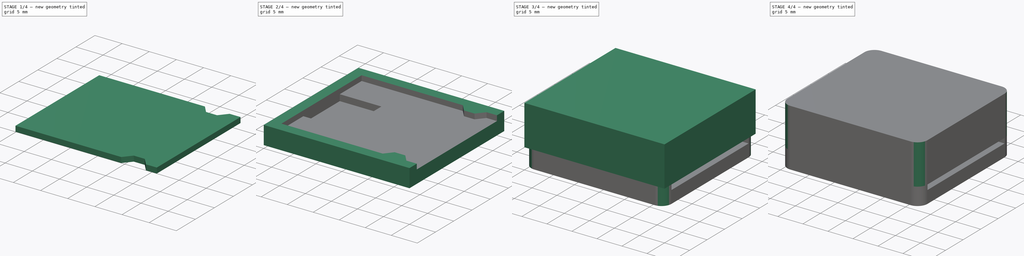
[diagram: build sequence overview — one tinted view per stage of 4, left to right]
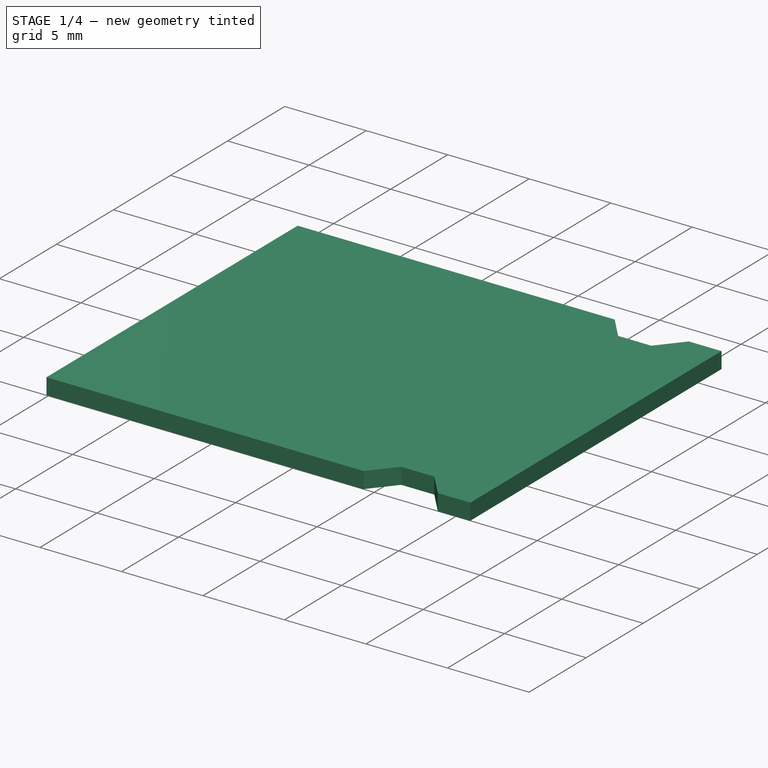
[diagram: stage 1 of 4 — iso view after this stage's code; geometry added in this stage tinted green]
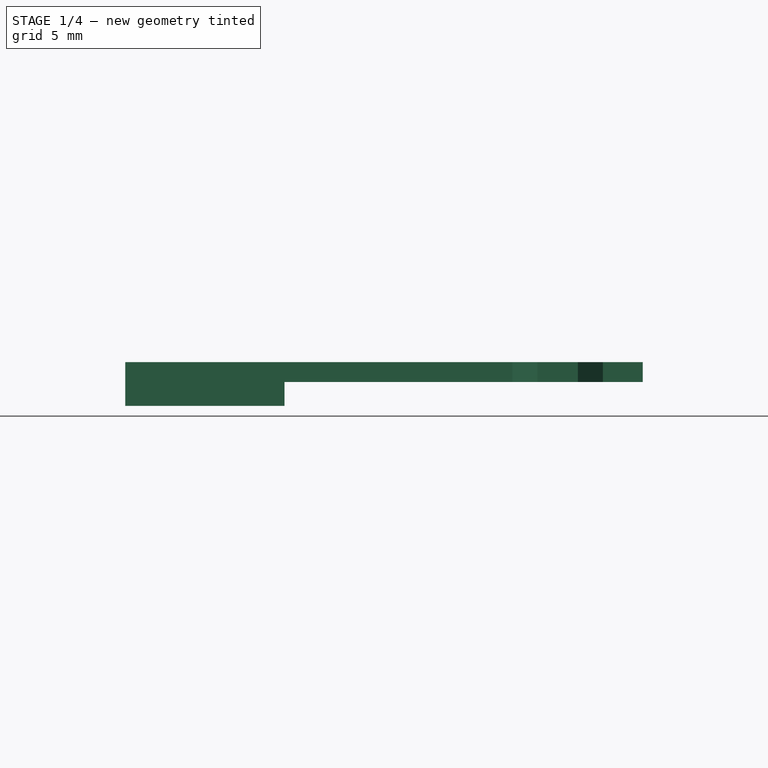
[diagram: stage 1 of 4 — front view after this stage's code; geometry added in this stage tinted green]
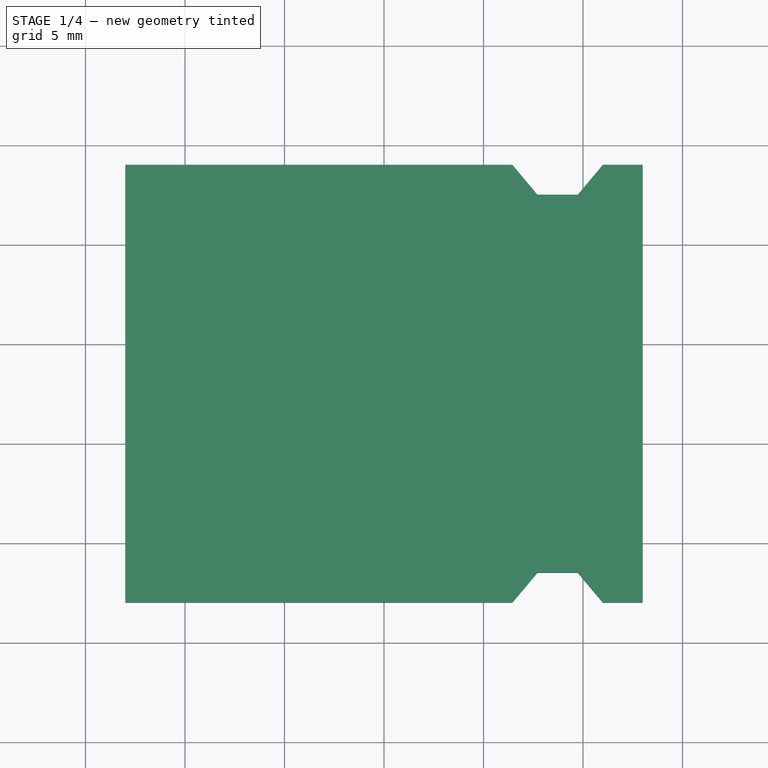
[diagram: stage 1 of 4 — top view after this stage's code; geometry added in this stage tinted green]
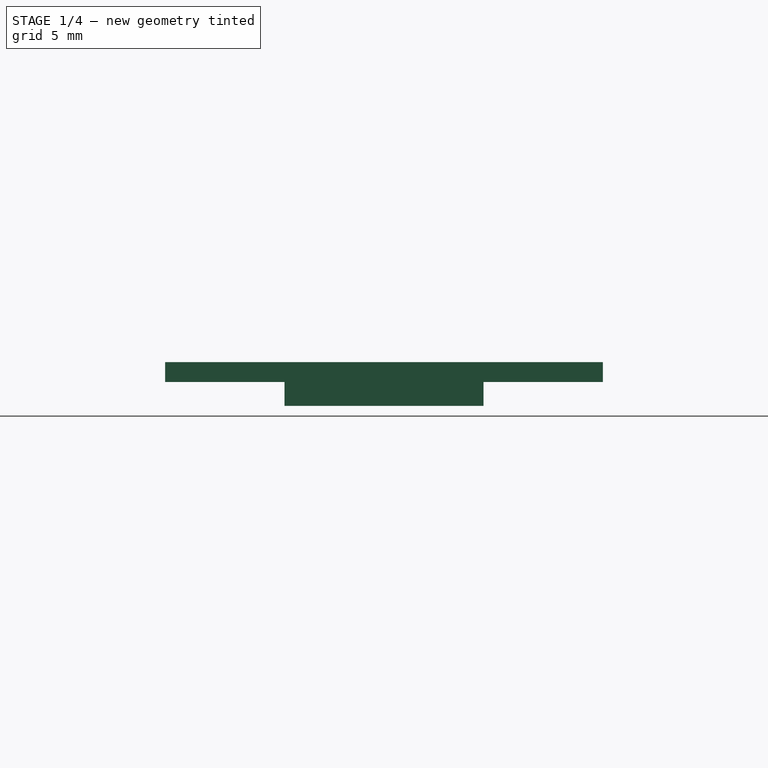
[diagram: stage 1 of 4 — right view after this stage's code; geometry added in this stage tinted green]
FCSTD DOCUMENT  (FreeCAD 0.16RUnknown)
Label: moist
License: All rights reserved
LicenseURL: http://en.wikipedia.org/wiki/All_rights_reserved
objects: Part::Box×5, Part::Cut×3, Sketcher::SketchObject×2, PartDesign::Pocket×2, PartDesign::Fillet×2
note: 16 computed .brp shape members not serialized (recipe doc carries the construction recipe); baked Part::Feature solids carry a one-line shape summary decoded from their .brp

FEATURE [Part::Box] Box001  label="Würfel001"
  Height = 1
  Length = 26
  Placement = pos=(2,2,2.5) rot=(0,0,1;0rad)
  Width = 22
FEATURE [Sketcher::SketchObject] Sketch
  ExternalGeometry = -> [Box001]
  Placement = pos=(2,2,3.5) rot=(0,0,1;0rad)
  Support = -> Box001 [Face6]
  sketch-geometry (14):
    g0: LineSegment StartX=24 StartY=22 StartZ=0 EndX=22.7414 EndY=20.5 EndZ=0
    g1: LineSegment StartX=22.7414 StartY=20.5 StartZ=0 EndX=20.7086 EndY=20.5 EndZ=0
    g2: LineSegment StartX=20.7086 StartY=20.5 StartZ=0 EndX=19.45 EndY=22 EndZ=0
    g3: LineSegment StartX=19.45 StartY=22 StartZ=0 EndX=24 EndY=22 EndZ=0
    g4: LineSegment StartX=19.45 StartY=0 StartZ=0 EndX=20.7086 EndY=1.5 EndZ=0
    g5: LineSegment StartX=20.7086 StartY=1.5 StartZ=0 EndX=22.7414 EndY=1.5 EndZ=0
    g6: LineSegment StartX=22.7414 StartY=1.5 StartZ=0 EndX=24 EndY=0 EndZ=0
    g7: LineSegment StartX=24 StartY=0 StartZ=0 EndX=19.45 EndY=0 EndZ=0
    g8: LineSegment [constr] StartX=20.7086 StartY=20.5 StartZ=0 EndX=20.7086 EndY=22 EndZ=0
    g9: LineSegment [constr] StartX=20.7086 StartY=1.5 StartZ=0 EndX=20.7086 EndY=0 EndZ=0
    g10: LineSegment [constr] StartX=24 StartY=22 StartZ=0 EndX=24 EndY=0 EndZ=0
    g11: LineSegment [constr] StartX=19.45 StartY=22 StartZ=0 EndX=0 EndY=22 EndZ=0
    g12: LineSegment [constr] StartX=19.45 StartY=0 StartZ=0 EndX=0 EndY=0 EndZ=0
    g13: LineSegment [constr] StartX=20.7086 StartY=20.5 StartZ=0 EndX=20.7086 EndY=1.5 EndZ=0
  constraints (38):
    c: Coincident(g0,g1)
    c: Coincident(g1,g2)
    c: Coincident(g2,g3)
    c: Coincident(g3,g0)
    c: Horizontal(g1)
    c: Coincident(g4,g5)
    c: Horizontal(g5)
    c: Coincident(g5,g6)
    c: Coincident(g6,g7)
    c: Coincident(g7,g4)
    c: Equal(g1,g5)
    c: DistanceY(g4,g1) = 19
    c: Coincident(g8,g1)
    c: Vertical(g8)
    c: Coincident(g9,g4)
    c: Vertical(g9)
    c: Equal(g9,g8)
    c: Coincident(g10,g0)
    c: Coincident(g10,g6)
    c: Coincident(g11,g2)
    c: Coincident(g11,g-3)
    c: Horizontal(g11)
    c: Coincident(g12,g4)
    c: Coincident(g12,g-1)
    c: Horizontal(g12)
    c: Horizontal(g7)
    c: Horizontal(g3)
    c: Equal(g7,g3)
    c: Vertical(g10)
    c: DistanceX(g11,g0) = 24
    c: PointOnObject(g8,g3)
    c: PointOnObject(g9,g7)
    c: Coincident(g13,g1)
    c: Coincident(g13,g4)
    c: Vertical(g13)
    c: Angle(g6) = -0.872665
    c: Angle(g4) = 0.872665
    c: DistanceX(g3,g3) = 4.55
FEATURE [PartDesign::Pocket] Pocket
  Length = 1
  Placement = pos=(2,2,2.5) rot=(0,0,1;0rad)
  Sketch = -> Sketch
  Type = 0
FEATURE [Part::Box] Box002  label="Würfel002"
  Height = 1.2
  Length = 8
  Placement = pos=(2,8,1.3) rot=(0,0,1;0rad)
  Width = 10
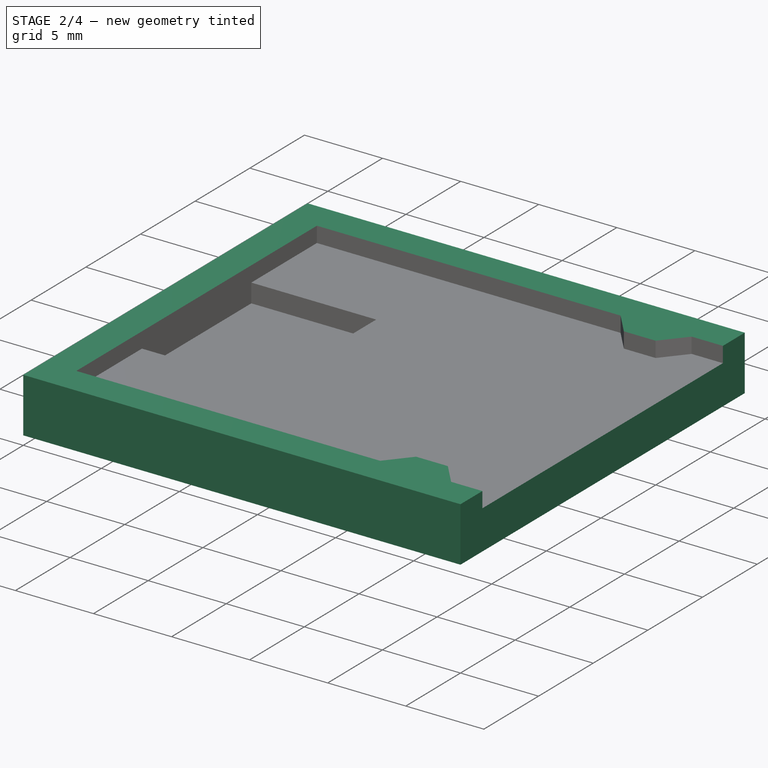
[diagram: stage 2 of 4 — iso view after this stage's code; geometry added in this stage tinted green]
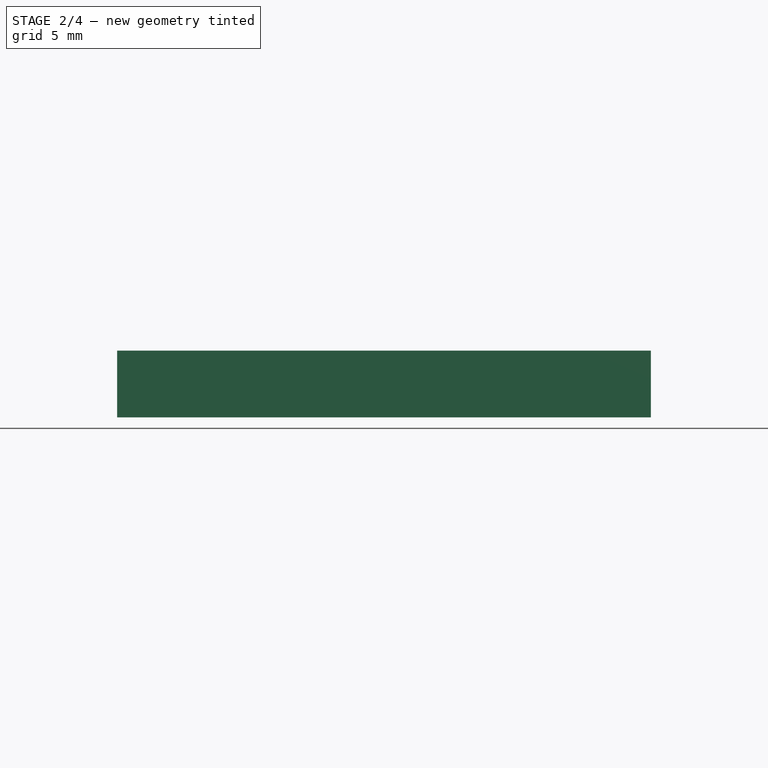
[diagram: stage 2 of 4 — front view after this stage's code; geometry added in this stage tinted green]
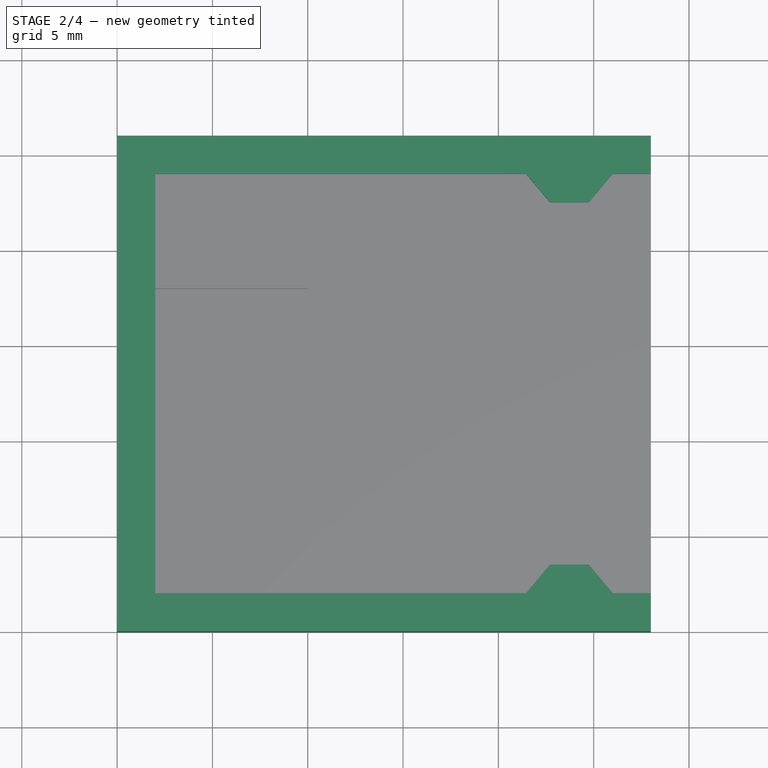
[diagram: stage 2 of 4 — top view after this stage's code; geometry added in this stage tinted green]
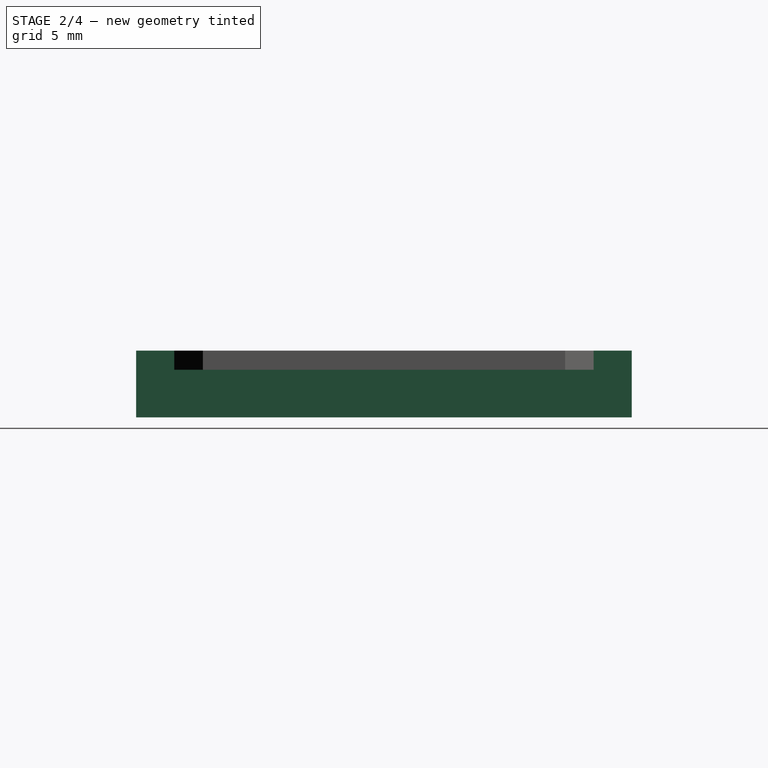
[diagram: stage 2 of 4 — right view after this stage's code; geometry added in this stage tinted green]
FEATURE [Part::Box] Box  label="Würfel"
  Height = 3.5
  Length = 28
  Width = 26
FEATURE [Part::Cut] Cut
  Base = -> Box
  Tool = -> Pocket
FEATURE [Part::Cut] Cut001  label="Unterteil"
  Base = -> Cut
  Tool = -> Box002
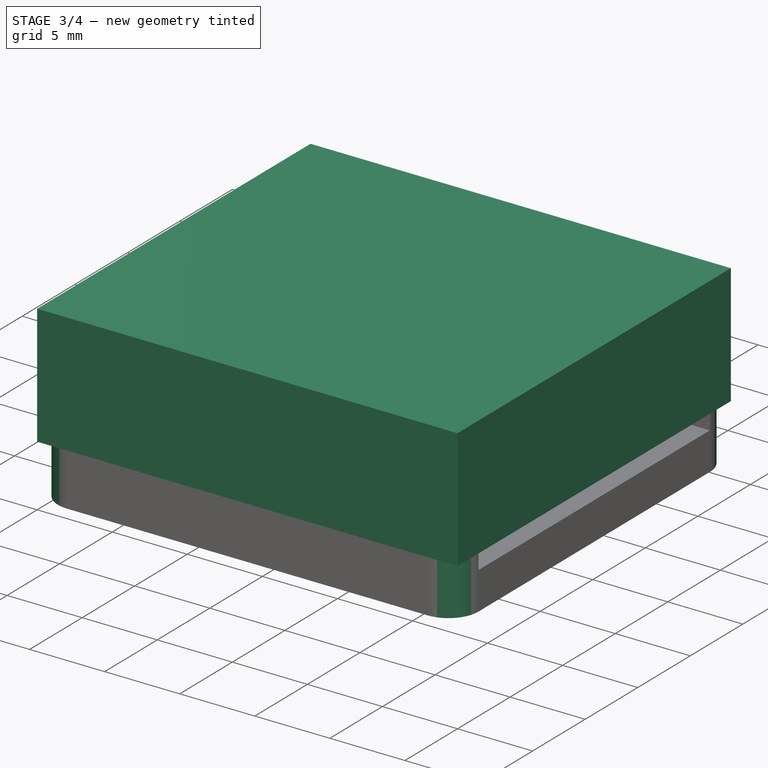
[diagram: stage 3 of 4 — iso view after this stage's code; geometry added in this stage tinted green]
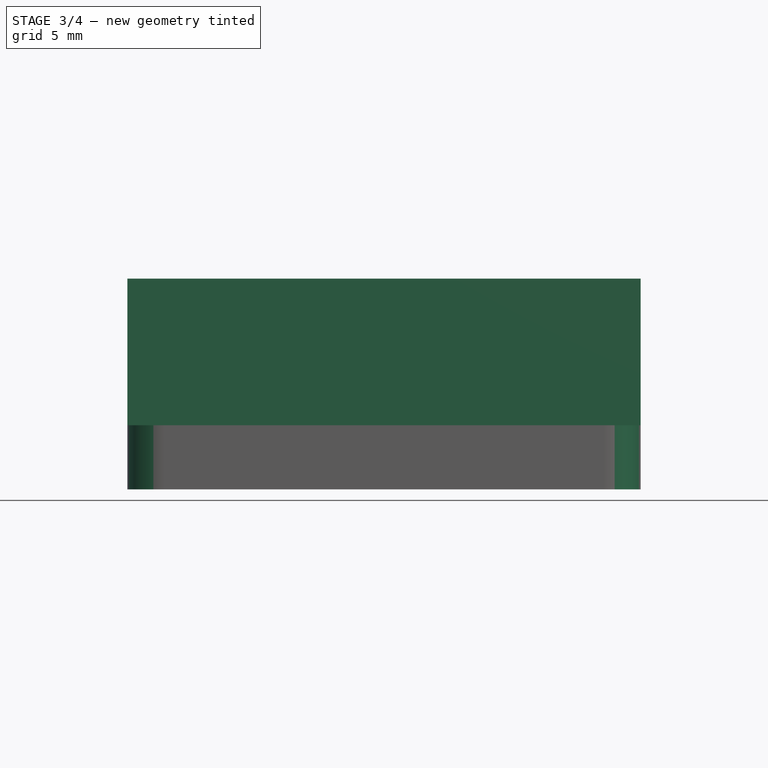
[diagram: stage 3 of 4 — front view after this stage's code; geometry added in this stage tinted green]
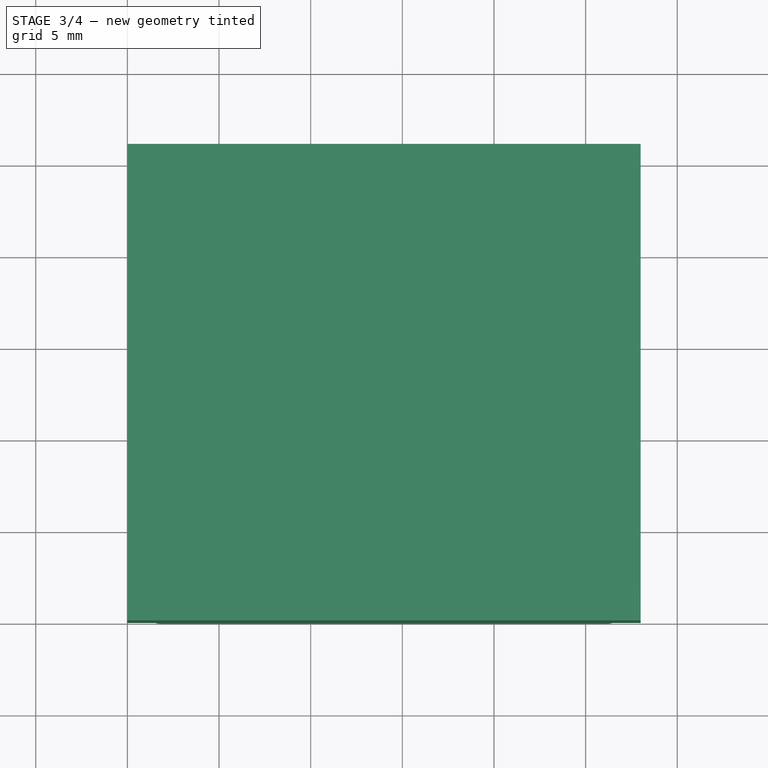
[diagram: stage 3 of 4 — top view after this stage's code; geometry added in this stage tinted green]
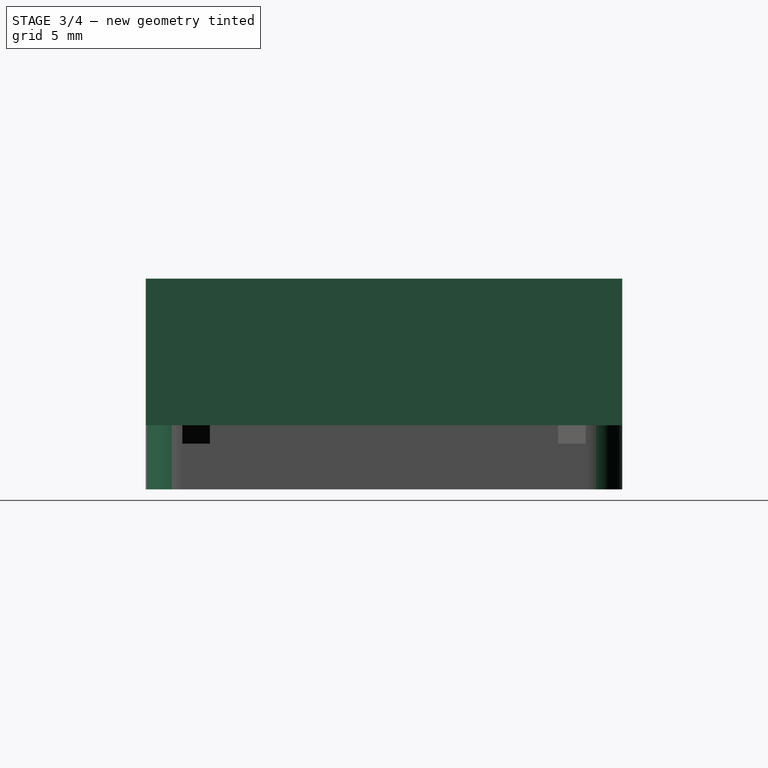
[diagram: stage 3 of 4 — right view after this stage's code; geometry added in this stage tinted green]
FEATURE [Part::Box] Box003  label="Würfel003"
  Height = 8
  Length = 28
  Placement = pos=(0,0,3.5) rot=(0,0,1;0rad)
  Width = 26
FEATURE [Part::Box] Box004  label="Würfel004"
  Height = 6
  Length = 24
  Placement = pos=(2,3,3.5) rot=(0,0,1;0rad)
  Width = 20
FEATURE [PartDesign::Fillet] Fillet001
  Base = -> Cut001 [Edge23,Edge6,Edge1,Edge3]
  Radius = 2
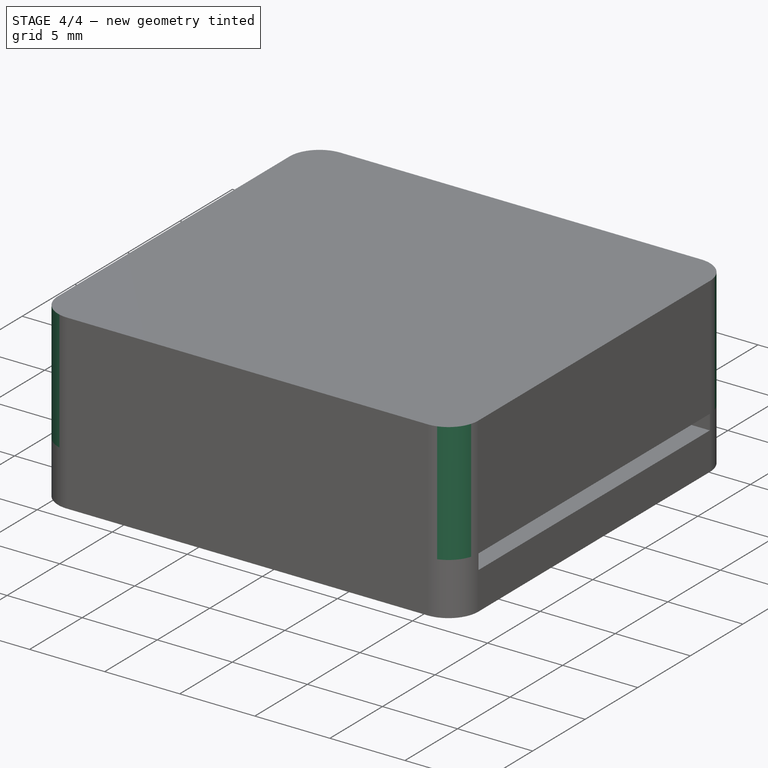
[diagram: stage 4 of 4 — iso view after this stage's code; geometry added in this stage tinted green]
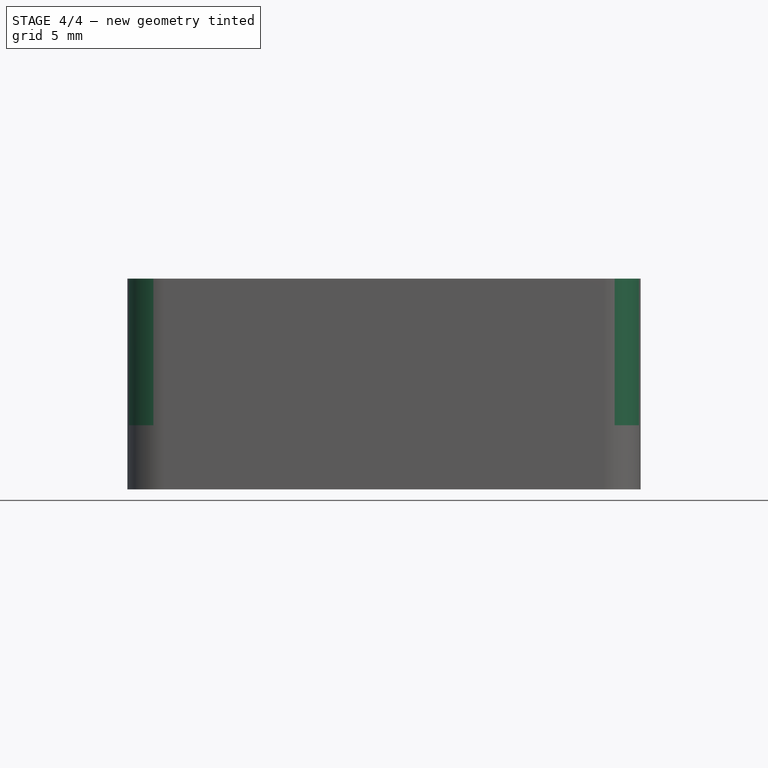
[diagram: stage 4 of 4 — front view after this stage's code; geometry added in this stage tinted green]
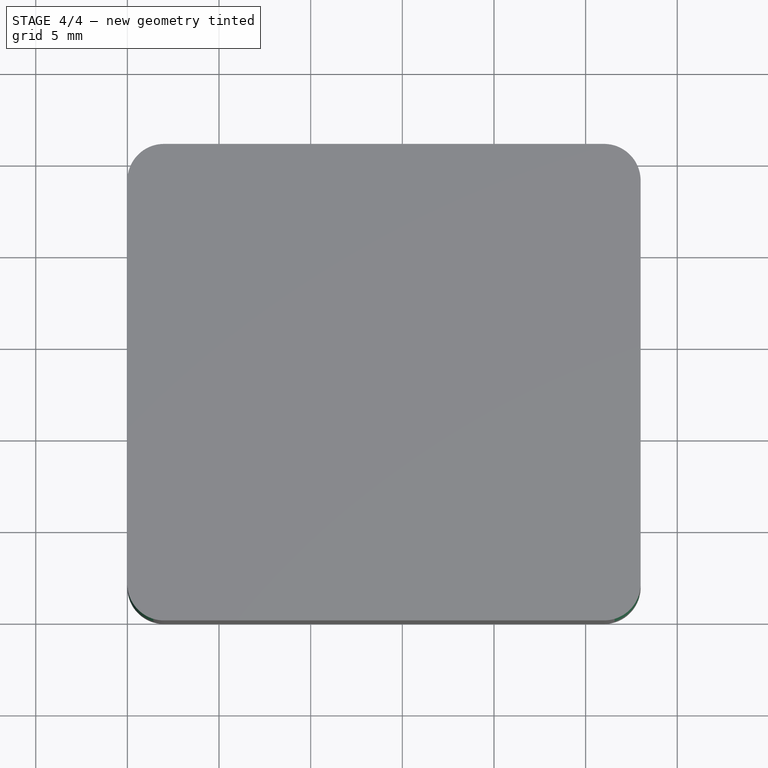
[diagram: stage 4 of 4 — top view after this stage's code; geometry added in this stage tinted green]
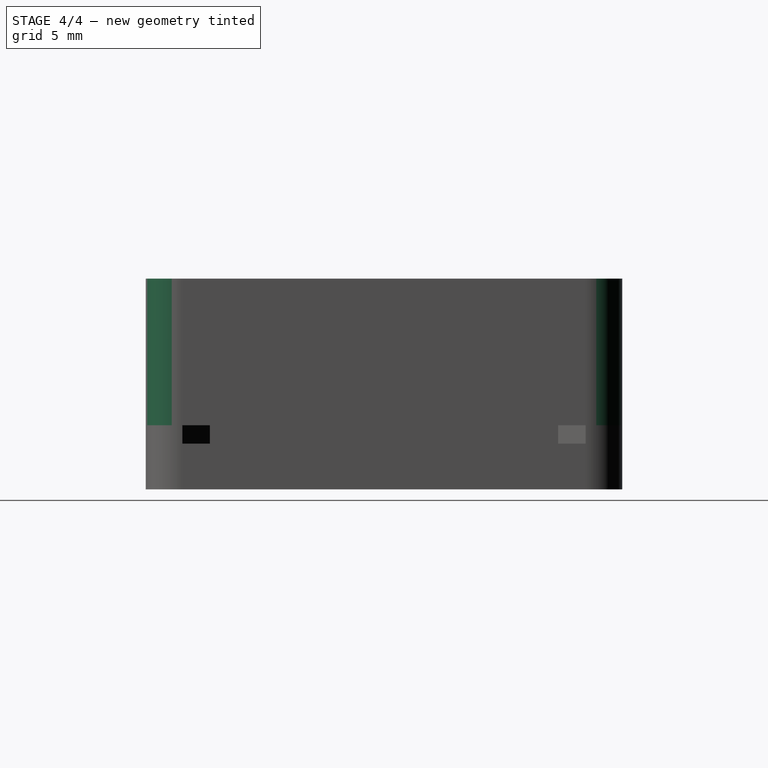
[diagram: stage 4 of 4 — right view after this stage's code; geometry added in this stage tinted green]
FEATURE [Part::Cut] Cut002
  Base = -> Box003
  Tool = -> Box004
FEATURE [Sketcher::SketchObject] Sketch001
  ExternalGeometry = -> [Cut002]
  Placement = pos=(0,0,0) rot=(0.57735,-0.57735,-0.57735;2.0944rad)
  Support = -> Cut002 [Face1]
  sketch-geometry (5):
    g0: LineSegment StartX=-18 StartY=9.5 StartZ=0 EndX=-8 EndY=9.5 EndZ=0
    g1: LineSegment StartX=-8 StartY=9.5 StartZ=0 EndX=-8 EndY=3.5 EndZ=0
    g2: LineSegment StartX=-8 StartY=3.5 StartZ=0 EndX=-18 EndY=3.5 EndZ=0
    g3: LineSegment StartX=-18 StartY=3.5 StartZ=0 EndX=-18 EndY=9.5 EndZ=0
    g4: GeomPoint [constr] X=-13 Y=3.5 Z=0
  constraints (14):
    c: Coincident(g0,g1)
    c: Coincident(g1,g2)
    c: Coincident(g2,g3)
    c: Coincident(g3,g0)
    c: Horizontal(g0)
    c: Horizontal(g2)
    c: Vertical(g1)
    c: Vertical(g3)
    c: PointOnObject(g1,g-6)
    c: DistanceX(g0,g0) = 10
    c: DistanceY(g3,g3) = 6
    c: PointOnObject(g4,g-6)
    c: Symmetric(g2,g1,g4)
    c: Symmetric(g-6,g-6,g4)
FEATURE [PartDesign::Pocket] Pocket001  label="Oberteil"
  Length = 2
  Sketch = -> Sketch001
  Type = 0
FEATURE [PartDesign::Fillet] Fillet
  Base = -> Pocket001 [Edge13,Edge2,Edge28,Edge8]
  Radius = 2
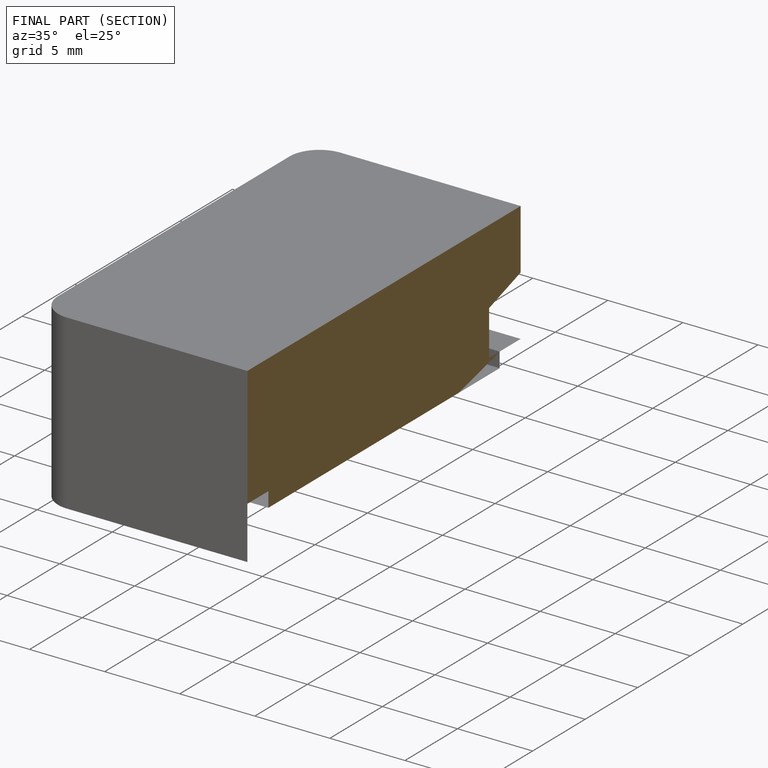
[diagram: finished part — half-section view (interior)]
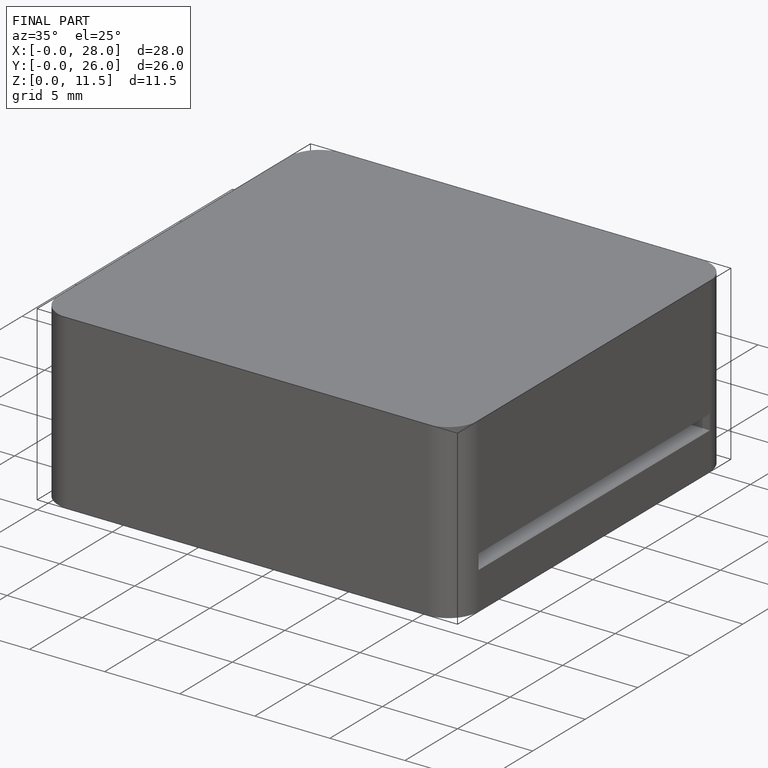
[diagram: finished part — iso view with bounding-box wireframe]
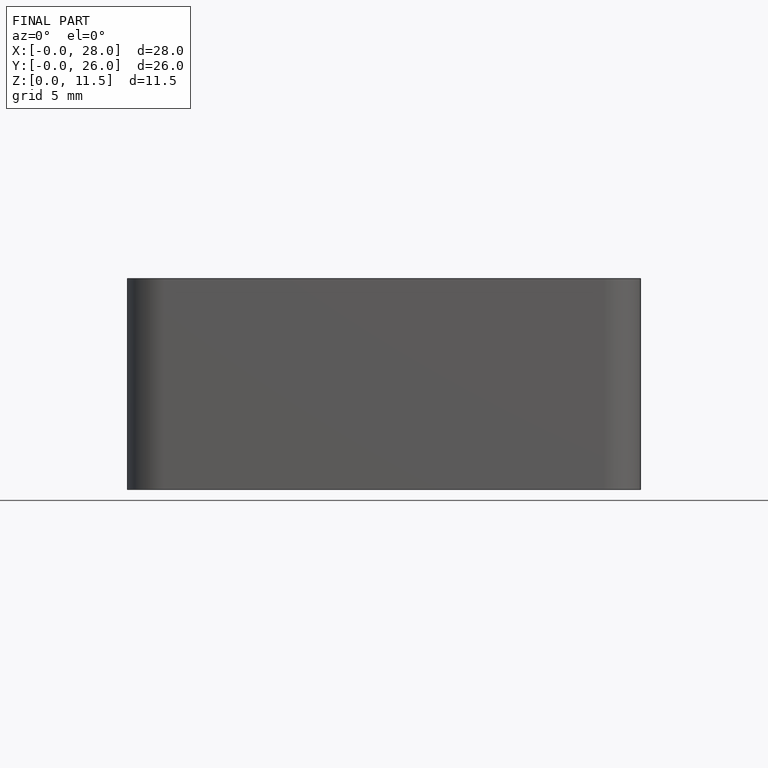
[diagram: finished part — front view with bounding-box wireframe]
